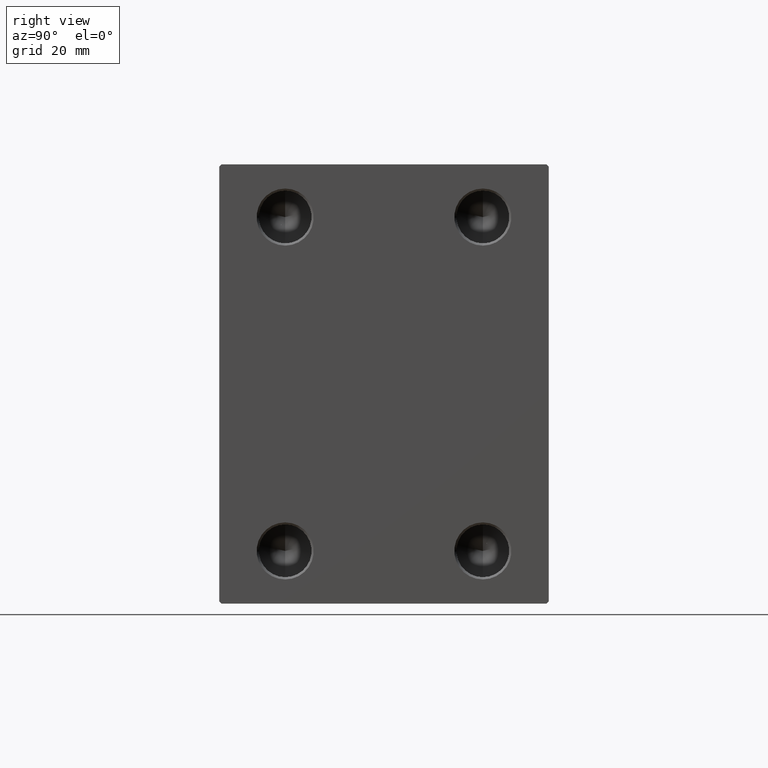
[diagram: clean part render]
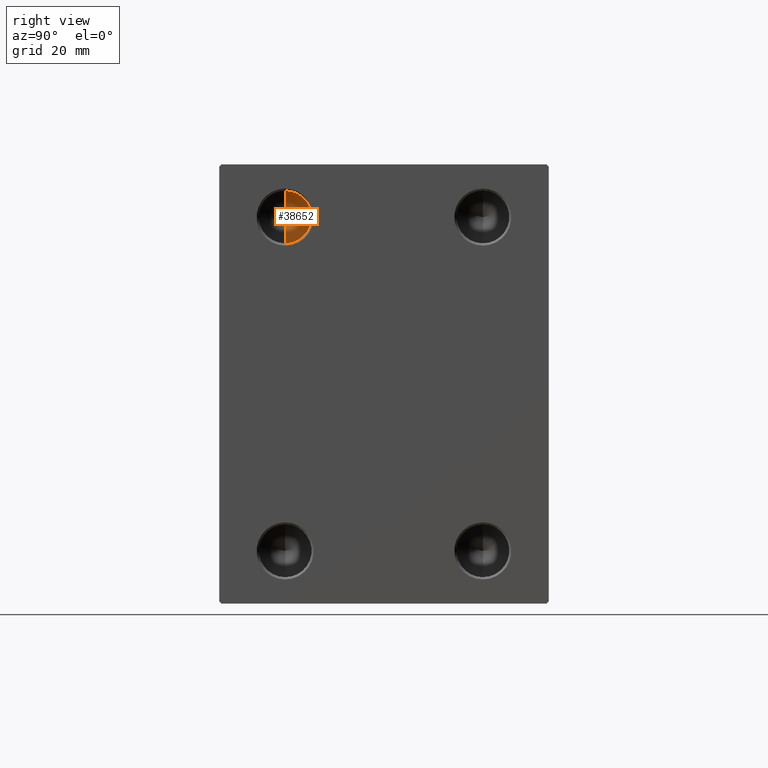
[diagram: same view with one face highlighted and labeled with its STEP entity id]
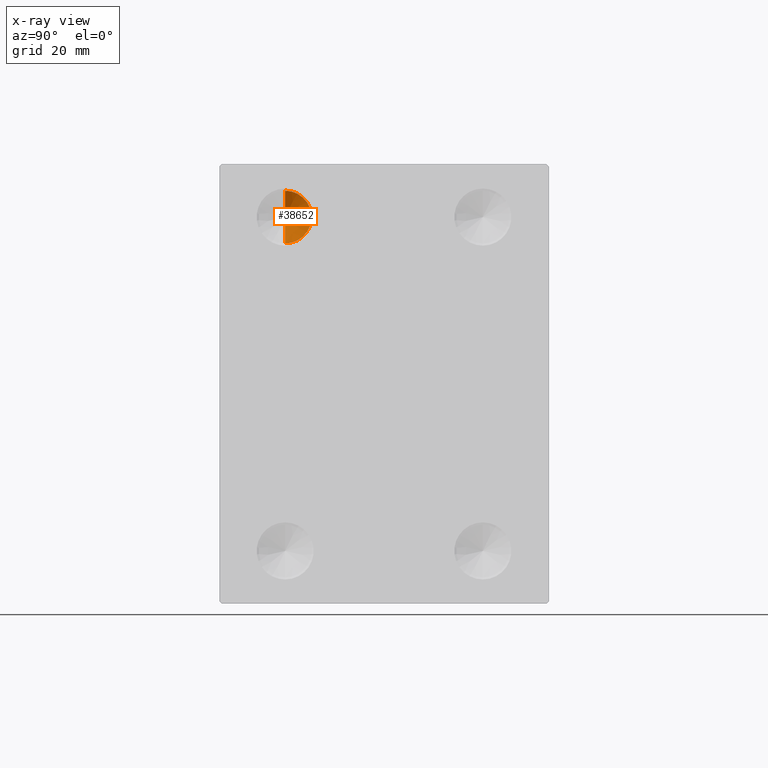
[diagram: x-ray of the same camera — body ghosted, the highlighted face saturated]
A machine part, right view. The second image highlights one B-rep face of the part: STEP entity #38652.
The next image is the same camera in x-ray: the body ghosted, the highlighted face saturated — about 0% of this face is hidden behind the body in this view.
In plain terms, the highlighted conical surface has half-angle 59 deg.
Its self-contained STEP definition (entity closure, byte-faithful):
#9048 = CARTESIAN_POINT ( 'NONE',  ( 78.00000000000000000, -22.50000000000000000, 37.99999999999999289 ) ) ;
#9501 = DIRECTION ( 'NONE',  ( 0.5150380749100549327, 0.000000000000000000, 0.8571673007021118895 ) ) ;
#10095 = CONICAL_SURFACE ( 'NONE', #26654, 5.999999999999998224, 1.029744258676653645 ) ;
#12260 = VERTEX_POINT ( 'NONE', #41284 ) ;
#12622 = VECTOR ( 'NONE', #9501, 1000.000000000000000 ) ;
#14018 = EDGE_CURVE ( 'NONE', #12260, #21719, #25815, .T. ) ;
#15819 = CARTESIAN_POINT ( 'NONE',  ( 78.00000000000000000, -22.50000000000000000, 43.99999999999999289 ) ) ;
#20893 = EDGE_CURVE ( 'NONE', #12260, #40249, #23015, .T. ) ;
#21719 = VERTEX_POINT ( 'NONE', #25964 ) ;
#21882 = CARTESIAN_POINT ( 'NONE',  ( 78.00000000000000000, -22.50000000000000000, 43.99999999999999289 ) ) ;
#22408 = CARTESIAN_POINT ( 'NONE',  ( 78.00000000000000000, -22.50000000000000000, 37.99999999999999289 ) ) ;
#23015 = LINE ( 'NONE', #15819, #12622 ) ;
#25815 = LINE ( 'NONE', #39525, #38303 ) ;
#25964 = CARTESIAN_POINT ( 'NONE',  ( 78.00000000000000000, -22.50000000000000000, 31.99999999999999289 ) ) ;
#26654 = AXIS2_PLACEMENT_3D ( 'NONE', #22408, #26663, #39496 ) ;
#26663 = DIRECTION ( 'NONE',  ( 1.000000000000000000, -0.000000000000000000, -0.000000000000000000 ) ) ;
#27641 = EDGE_CURVE ( 'NONE', #40249, #21719, #29965, .T. ) ;
#29965 = CIRCLE ( 'NONE', #40004, 5.999999999999998224 ) ;
#33402 = FACE_OUTER_BOUND ( 'NONE', #40727, .T. ) ;
#33531 = ORIENTED_EDGE ( 'NONE', *, *, #14018, .T. ) ;
#34310 = DIRECTION ( 'NONE',  ( 0.5150380749100549327, -1.049727191138618079E-16, -0.8571673007021118895 ) ) ;
#36931 = DIRECTION ( 'NONE',  ( 0.000000000000000000, 0.000000000000000000, 1.000000000000000000 ) ) ;
#37337 = ORIENTED_EDGE ( 'NONE', *, *, #27641, .F. ) ;
#38303 = VECTOR ( 'NONE', #34310, 1000.000000000000000 ) ;
#38652 = ADVANCED_FACE ( 'NONE', ( #33402 ), #10095, .F. ) ;
#39496 = DIRECTION ( 'NONE',  ( 0.000000000000000000, 0.000000000000000000, 1.000000000000000000 ) ) ;
#39525 = CARTESIAN_POINT ( 'NONE',  ( 78.00000000000000000, -22.50000000000000000, 31.99999999999999289 ) ) ;
#40004 = AXIS2_PLACEMENT_3D ( 'NONE', #9048, #43892, #36931 ) ;
#40249 = VERTEX_POINT ( 'NONE', #21882 ) ;
#40727 = EDGE_LOOP ( 'NONE', ( #43943, #33531, #37337 ) ) ;
#41284 = CARTESIAN_POINT ( 'NONE',  ( 74.39483628583464281, -22.50000000000000711, 37.99999999999999289 ) ) ;
#43892 = DIRECTION ( 'NONE',  ( -1.000000000000000000, 0.000000000000000000, 0.000000000000000000 ) ) ;
#43943 = ORIENTED_EDGE ( 'NONE', *, *, #20893, .F. ) ;